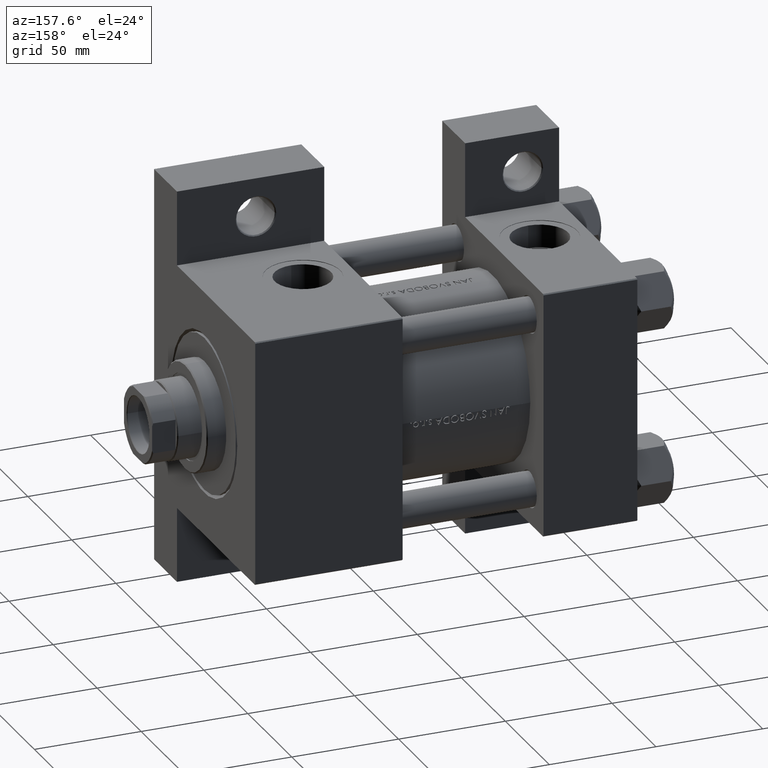
[diagram: clean part render]
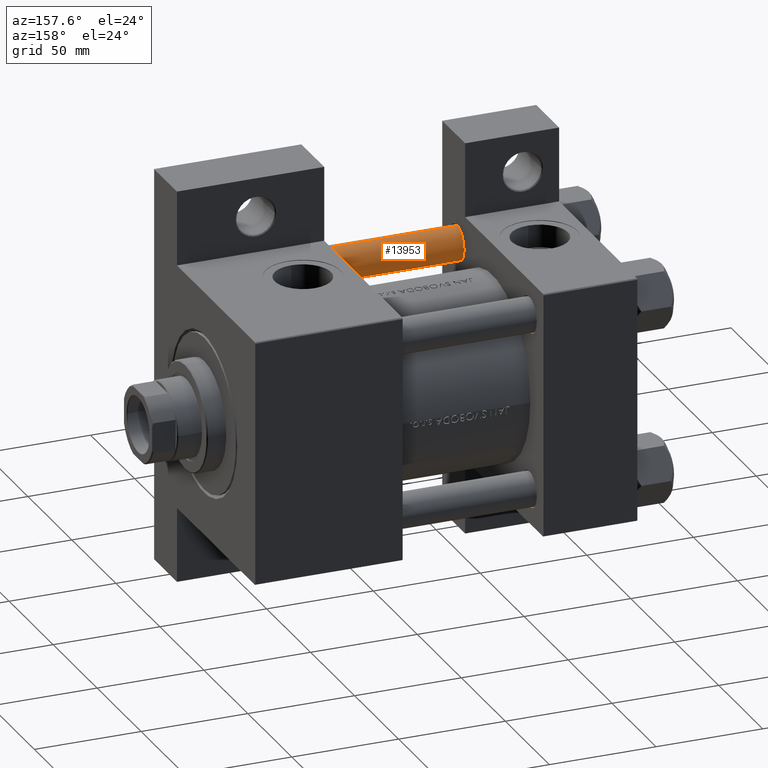
[diagram: same view with one face highlighted and labeled with its STEP entity id]
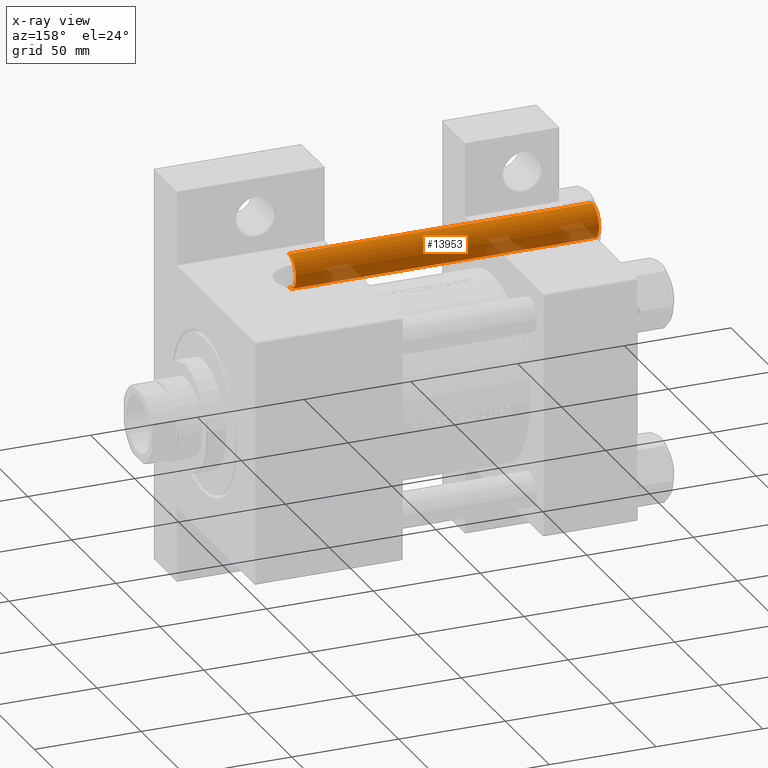
[diagram: x-ray of the same camera — body ghosted, the highlighted face saturated]
A machine part, auxiliary view. The second image highlights one B-rep face of the part: STEP entity #13953.
The next image is the same camera in x-ray: the body ghosted, the highlighted face saturated — about 14% of this face is hidden behind the body in this view.
In plain terms, the highlighted cylindrical surface (edge-blend (fillet) strip) has radius 8 mm, axis along (1, 0, 0).
Its self-contained STEP definition (entity closure, byte-faithful):
#1611 = EDGE_LOOP ( 'NONE', ( #17379, #3243, #32459, #6409 ) ) ;
#3243 = ORIENTED_EDGE ( 'NONE', *, *, #20451, .T. ) ;
#4589 = DIRECTION ( 'NONE',  ( 0.000000000000000000, 0.000000000000000000, -1.000000000000000000 ) ) ;
#6409 = ORIENTED_EDGE ( 'NONE', *, *, #9172, .T. ) ;
#8863 = VECTOR ( 'NONE', #36029, 1000.000000000000000 ) ;
#9172 = EDGE_CURVE ( 'NONE', #42111, #32803, #14131, .T. ) ;
#12707 = AXIS2_PLACEMENT_3D ( 'NONE', #40385, #21909, #36741 ) ;
#13953 = ADVANCED_FACE ( 'NONE', ( #34054 ), #25572, .T. ) ;
#14131 = CIRCLE ( 'NONE', #41262, 8.000000000000000000 ) ;
#14470 = CARTESIAN_POINT ( 'NONE',  ( 0.000000000000000000, 0.000000000000000000, 0.4999999999999726885 ) ) ;
#14866 = EDGE_CURVE ( 'NONE', #20604, #32803, #46940, .T. ) ;
#17379 = ORIENTED_EDGE ( 'NONE', *, *, #14866, .F. ) ;
#18996 = CIRCLE ( 'NONE', #22071, 8.000000000000000000 ) ;
#19110 = CARTESIAN_POINT ( 'NONE',  ( 8.000000000000000000, 9.797174393178825657E-16, 0.4999999999999726885 ) ) ;
#19614 = DIRECTION ( 'NONE',  ( 1.000000000000000000, 0.000000000000000000, 0.000000000000000000 ) ) ;
#20451 = EDGE_CURVE ( 'NONE', #20604, #35431, #18996, .T. ) ;
#20604 = VERTEX_POINT ( 'NONE', #40248 ) ;
#21909 = DIRECTION ( 'NONE',  ( -0.000000000000000000, -0.000000000000000000, -1.000000000000000000 ) ) ;
#22071 = AXIS2_PLACEMENT_3D ( 'NONE', #37844, #4589, #19614 ) ;
#25572 = CYLINDRICAL_SURFACE ( 'NONE', #12707, 8.000000000000000000 ) ;
#29533 = DIRECTION ( 'NONE',  ( -0.000000000000000000, -0.000000000000000000, 1.000000000000000000 ) ) ;
#32459 = ORIENTED_EDGE ( 'NONE', *, *, #45824, .T. ) ;
#32803 = VERTEX_POINT ( 'NONE', #19110 ) ;
#34054 = FACE_OUTER_BOUND ( 'NONE', #1611, .T. ) ;
#35431 = VERTEX_POINT ( 'NONE', #38070 ) ;
#35951 = DIRECTION ( 'NONE',  ( -0.000000000000000000, -0.000000000000000000, -1.000000000000000000 ) ) ;
#36029 = DIRECTION ( 'NONE',  ( -0.000000000000000000, -0.000000000000000000, -1.000000000000000000 ) ) ;
#36188 = LINE ( 'NONE', #47101, #41780 ) ;
#36275 = CARTESIAN_POINT ( 'NONE',  ( 8.000000000000000000, 9.797174393178825657E-16, 143.0000000000000000 ) ) ;
#36343 = DIRECTION ( 'NONE',  ( 1.000000000000000000, 0.000000000000000000, 0.000000000000000000 ) ) ;
#36741 = DIRECTION ( 'NONE',  ( -1.000000000000000000, 0.000000000000000000, 0.000000000000000000 ) ) ;
#37844 = CARTESIAN_POINT ( 'NONE',  ( 0.000000000000000000, 0.000000000000000000, 142.4999999999999716 ) ) ;
#38070 = CARTESIAN_POINT ( 'NONE',  ( -8.000000000000000000, 0.000000000000000000, 142.4999999999999716 ) ) ;
#40248 = CARTESIAN_POINT ( 'NONE',  ( 8.000000000000000000, 9.797174393178825657E-16, 142.4999999999999716 ) ) ;
#40385 = CARTESIAN_POINT ( 'NONE',  ( 0.000000000000000000, 0.000000000000000000, 143.0000000000000000 ) ) ;
#41262 = AXIS2_PLACEMENT_3D ( 'NONE', #14470, #29533, #36343 ) ;
#41780 = VECTOR ( 'NONE', #35951, 1000.000000000000000 ) ;
#42111 = VERTEX_POINT ( 'NONE', #46646 ) ;
#45824 = EDGE_CURVE ( 'NONE', #35431, #42111, #36188, .T. ) ;
#46646 = CARTESIAN_POINT ( 'NONE',  ( -8.000000000000000000, 0.000000000000000000, 0.4999999999999726885 ) ) ;
#46940 = LINE ( 'NONE', #36275, #8863 ) ;
#47101 = CARTESIAN_POINT ( 'NONE',  ( -8.000000000000000000, 0.000000000000000000, 143.0000000000000000 ) ) ;